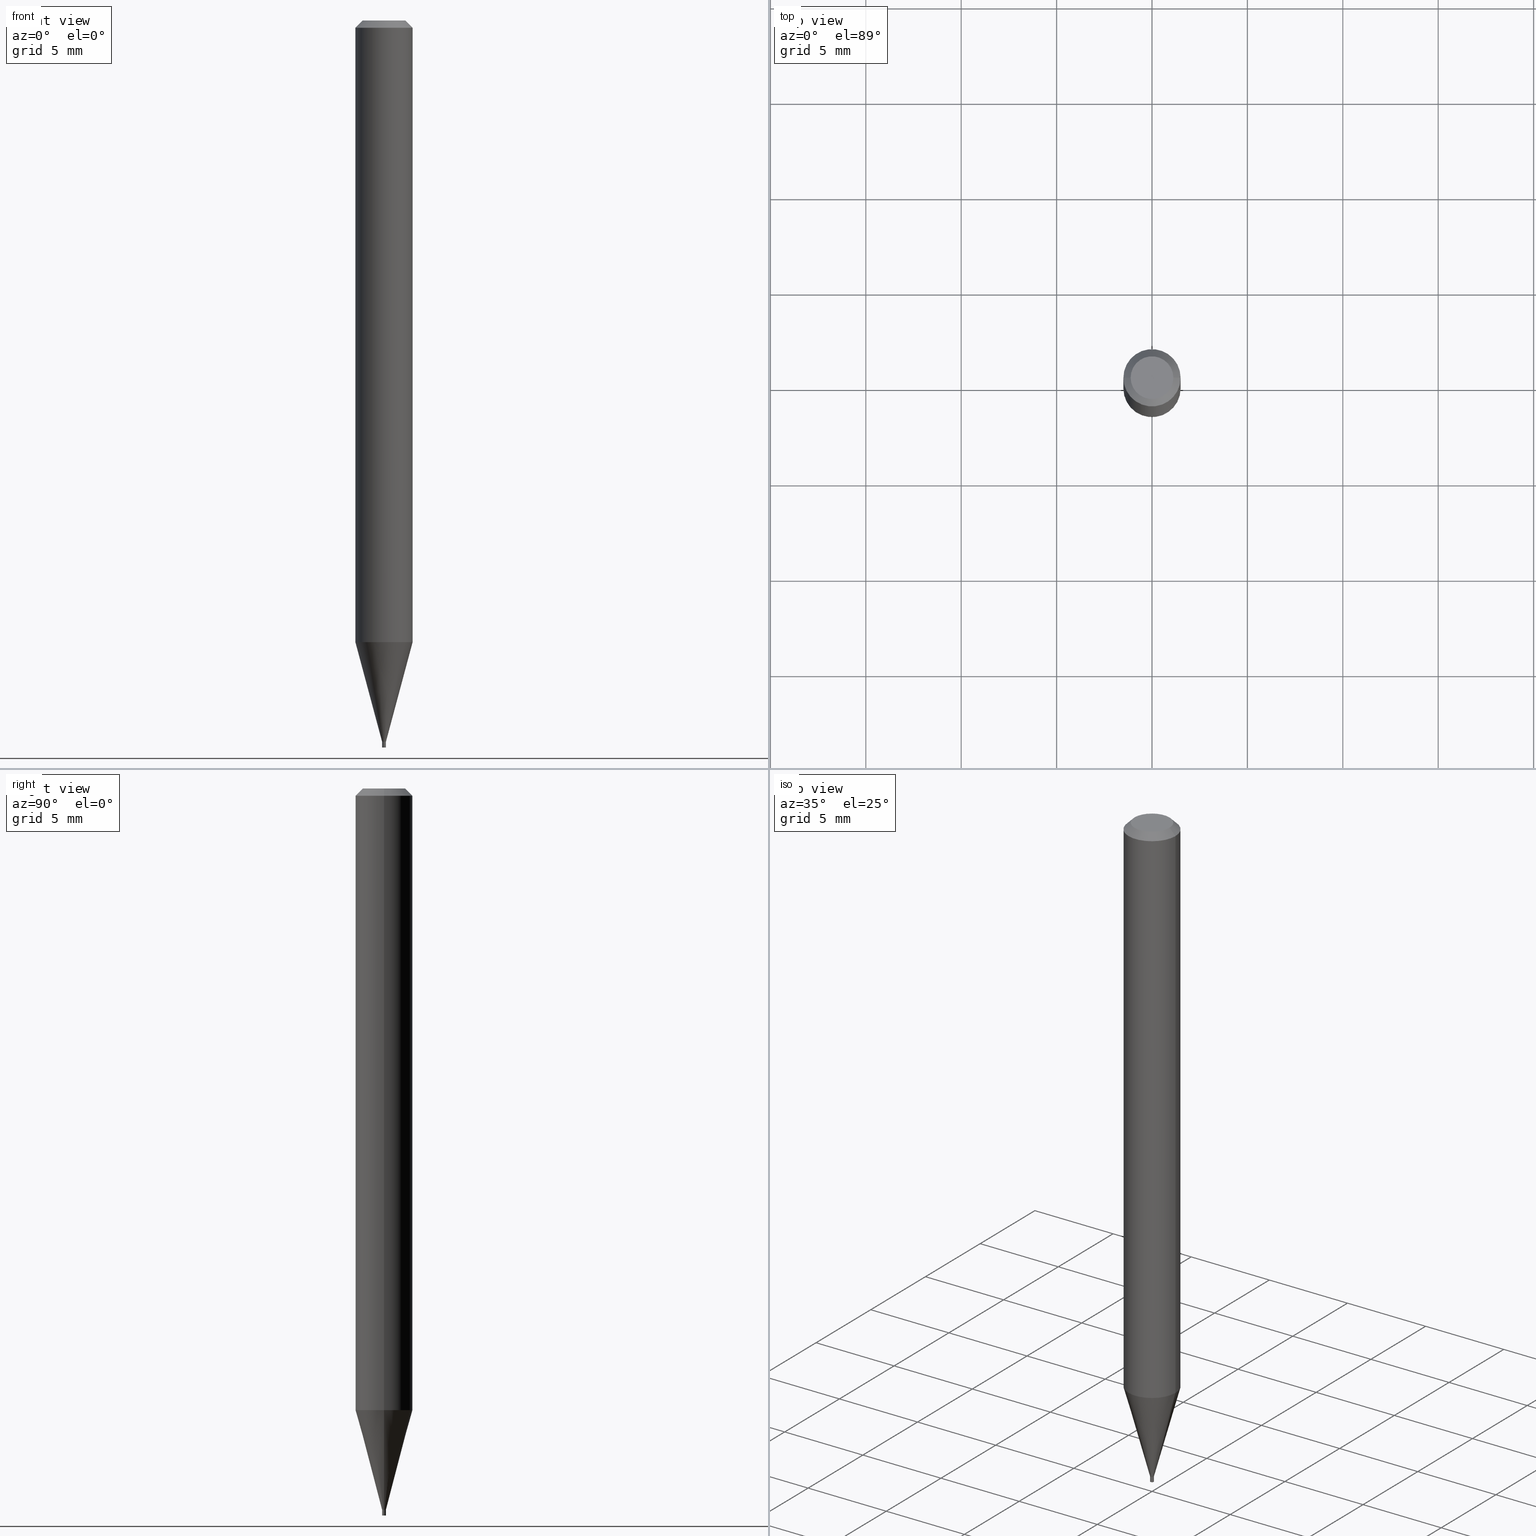
[diagram: canonical four-view strip — front | top / right | iso, engineering-drawing reading convention]
A machine part, canonical four-view strip (front | top / right | iso — engineering-drawing reading convention). The complete STEP part file that produces these views, byte-faithful:
ISO-10303-21;
HEADER;
FILE_DESCRIPTION (( 'STEP AP203' ),
    '1' );
FILE_NAME ('05113.STEP',
    '2024-03-14T17:57:27',
    ( '' ),
    ( '' ),
    'SwSTEP 2.0',
    'SolidWorks 2023',
    '' );
FILE_SCHEMA (( 'CONFIG_CONTROL_DESIGN' ));
ENDSEC;

DATA;
#1 = ADVANCED_FACE ( 'NONE', ( #111 ), #60, .T. ) ;
#2 = EDGE_LOOP ( 'NONE', ( #222, #417 ) ) ;
#3 = CARTESIAN_POINT ( 'NONE',  ( 3.639346677364720273E-29, -5.196022528466369115E-15, -1.488199999999999967 ) ) ;
#4 = ORIENTED_EDGE ( 'NONE', *, *, #45, .T. ) ;
#5 = EDGE_CURVE ( 'NONE', #278, #407, #464, .T. ) ;
#6 = FACE_OUTER_BOUND ( 'NONE', #448, .T. ) ;
#7 = ORIENTED_EDGE ( 'NONE', *, *, #156, .T. ) ;
#8 = SECURITY_CLASSIFICATION ( '', '', #376 ) ;
#9 = DIRECTION ( 'NONE',  ( 1.000000000000000000, -6.982962677686373207E-15, 0.000000000000000000 ) ) ;
#10 = ADVANCED_FACE ( 'NONE', ( #461 ), #422, .F. ) ;
#11 = COORDINATED_UNIVERSAL_TIME_OFFSET ( 5, 0, .BEHIND. ) ;
#12 = CARTESIAN_POINT ( 'NONE',  ( 0.003950000000000000386, -2.758270257686075787E-17, 1.926089826439394878E-31 ) ) ;
#13 = CIRCLE ( 'NONE', #238, 0.003949999999999924058 ) ;
#14 = DATE_AND_TIME ( #162, #368 ) ;
#15 = LINE ( 'NONE', #12, #332 ) ;
#16 = ORIENTED_EDGE ( 'NONE', *, *, #45, .F. ) ;
#17 = EDGE_CURVE ( 'NONE', #82, #402, #28, .T. ) ;
#18 = DATE_AND_TIME ( #264, #98 ) ;
#19 = DIRECTION ( 'NONE',  ( -2.445468806185136597E-29, 3.491481338843145583E-15, 1.000000000000000000 ) ) ;
#20 = EDGE_LOOP ( 'NONE', ( #415, #358 ) ) ;
#21 = AXIS2_PLACEMENT_3D ( 'NONE', #232, #270, #335 ) ;
#22 = AXIS2_PLACEMENT_3D ( 'NONE', #120, #183, #9 ) ;
#23 = ADVANCED_FACE ( 'NONE', ( #320 ), #149, .F. ) ;
#24 = ORIENTED_EDGE ( 'NONE', *, *, #109, .F. ) ;
#25 = VERTEX_POINT ( 'NONE', #265 ) ;
#26 = CIRCLE ( 'NONE', #22, 0.003450000000000000809 ) ;
#27 = EDGE_CURVE ( 'NONE', #465, #293, #230, .T. ) ;
#28 = LINE ( 'NONE', #285, #254 ) ;
#29 = CC_DESIGN_PERSON_AND_ORGANIZATION_ASSIGNMENT ( #129, #140, ( #8 ) ) ;
#30 = DIRECTION ( 'NONE',  ( -1.000000000000000000, 6.982962677686266711E-15, 0.000000000000000000 ) ) ;
#31 = EDGE_LOOP ( 'NONE', ( #182, #4, #237, #431 ) ) ;
#32 = CIRCLE ( 'NONE', #305, 0.003950000000000000386 ) ;
#33 = LOCAL_TIME ( 13, 57, 27.00000000000000000, #274 ) ;
#34 = CARTESIAN_POINT ( 'NONE',  ( 0.000000000000000000, 0.000000000000000000, 0.000000000000000000 ) ) ;
#35 = ORIENTED_EDGE ( 'NONE', *, *, #199, .F. ) ;
#36 = ORIENTED_EDGE ( 'NONE', *, *, #412, .F. ) ;
#37 = FACE_OUTER_BOUND ( 'NONE', #409, .T. ) ;
#38 = CARTESIAN_POINT ( 'NONE',  ( -0.003950000000000000386, -5.188555830303019624E-15, -1.488199999999999967 ) ) ;
#39 = CIRCLE ( 'NONE', #310, 0.05904999999999999832 ) ;
#40 = ADVANCED_FACE ( 'NONE', ( #447 ), #52, .F. ) ;
#41 = AXIS2_PLACEMENT_3D ( 'NONE', #444, #382, #337 ) ;
#42 = CARTESIAN_POINT ( 'NONE',  ( 3.668203209277704895E-29, -5.237222008264718177E-15, -1.500000000000000222 ) ) ;
#43 = APPROVAL_ROLE ( '' ) ;
#44 = DATE_AND_TIME ( #137, #33 ) ;
#45 = EDGE_CURVE ( 'NONE', #46, #118, #406, .T. ) ;
#46 = VERTEX_POINT ( 'NONE', #194 ) ;
#47 = AXIS2_PLACEMENT_3D ( 'NONE', #169, #315, #459 ) ;
#48 = ORGANIZATION ( 'UNSPECIFIED', 'UNSPECIFIED', '' ) ;
#49 = CARTESIAN_POINT ( 'NONE',  ( -0.003450000000000000809, -5.168859576908534791E-15, -1.488199999999999967 ) ) ;
#50 = DIRECTION ( 'NONE',  ( -2.445468806185136597E-29, 3.491481338843145583E-15, 1.000000000000000000 ) ) ;
#51 = DATE_AND_TIME ( #269, #272 ) ;
#52 = PLANE ( 'NONE',  #21 ) ;
#53 = EDGE_CURVE ( 'NONE', #25, #360, #15, .T. ) ;
#54 = APPROVAL_DATE_TIME ( #405, #174 ) ;
#55 = FACE_OUTER_BOUND ( 'NONE', #430, .T. ) ;
#56 = ORIENTED_EDGE ( 'NONE', *, *, #283, .F. ) ;
#57 = DATE_TIME_ROLE ( 'classification_date' ) ;
#58 = CYLINDRICAL_SURFACE ( 'NONE', #71, 0.05904999999999999832 ) ;
#59 = ADVANCED_FACE ( 'NONE', ( #303 ), #440, .F. ) ;
#60 = CONICAL_SURFACE ( 'NONE', #204, 0.05904999999999999832, 0.7853981633974284060 ) ;
#61 = CIRCLE ( 'NONE', #443, 0.003950000000000000386 ) ;
#62 = ORIENTED_EDGE ( 'NONE', *, *, #348, .T. ) ;
#63 = DIRECTION ( 'NONE',  ( -1.000000000000000000, 6.982962677686265922E-15, -4.876176775795935793E-29 ) ) ;
#64 = DIRECTION ( 'NONE',  ( 1.000000000000000000, -6.982962677686267499E-15, 4.876176775795935793E-29 ) ) ;
#65 = DIMENSIONAL_EXPONENTS ( 1.000000000000000000, 0.000000000000000000, 0.000000000000000000, 0.000000000000000000, 0.000000000000000000, 0.000000000000000000, 0.000000000000000000 ) ;
#66 = VERTEX_POINT ( 'NONE', #247 ) ;
#67 = PRODUCT_RELATED_PRODUCT_CATEGORY ( 'detail', '', ( #423 ) ) ;
#68 = EDGE_CURVE ( 'NONE', #46, #195, #226, .T. ) ;
#69 = CARTESIAN_POINT ( 'NONE',  ( 3.639346677364720273E-29, -5.196022528466369115E-15, -1.488199999999999967 ) ) ;
#70 = DIRECTION ( 'NONE',  ( 1.000000000000000000, -6.982962677686266711E-15, 0.000000000000000000 ) ) ;
#71 = AXIS2_PLACEMENT_3D ( 'NONE', #201, #142, #112 ) ;
#72 = CONICAL_SURFACE ( 'NONE', #413, 0.003949999999999924058, 0.2617993877991500740 ) ;
#73 = DIRECTION ( 'NONE',  ( -2.445468806185136597E-29, 3.491481338843145583E-15, 1.000000000000000000 ) ) ;
#74 = CARTESIAN_POINT ( 'NONE',  ( -0.05904999999999999832, -4.058472788161738088E-15, -1.282564000502955048 ) ) ;
#75 = DIRECTION ( 'NONE',  ( -2.445468806185136597E-29, 3.491481338843145583E-15, 1.000000000000000000 ) ) ;
#76 = EDGE_LOOP ( 'NONE', ( #399, #396 ) ) ;
#77 = CARTESIAN_POINT ( 'NONE',  ( 3.638123942961628033E-29, -5.194276787796947611E-15, -1.487700000000000022 ) ) ;
#78 = ORIENTED_EDGE ( 'NONE', *, *, #156, .F. ) ;
#79 = ADVANCED_BREP_SHAPE_REPRESENTATION ( '05113', ( #438, #450, #41 ), #255 ) ;
#80 = CARTESIAN_POINT ( 'NONE',  ( 3.639346677364720273E-29, -5.196022528466369115E-15, -1.488199999999999967 ) ) ;
#81 = AXIS2_PLACEMENT_3D ( 'NONE', #263, #404, #363 ) ;
#82 = VERTEX_POINT ( 'NONE', #74 ) ;
#83 = AXIS2_PLACEMENT_3D ( 'NONE', #186, #429, #466 ) ;
#84 = CARTESIAN_POINT ( 'NONE',  ( 0.003949999999999924058, -2.758270257686021861E-17, 1.926089826439357437E-31 ) ) ;
#85 = ORIENTED_EDGE ( 'NONE', *, *, #318, .T. ) ;
#86 = DIRECTION ( 'NONE',  ( -2.445468806185136597E-29, 3.491481338843145583E-15, 1.000000000000000000 ) ) ;
#87 = ORIENTED_EDGE ( 'NONE', *, *, #220, .T. ) ;
#88 = ADVANCED_FACE ( 'NONE', ( #314 ), #164, .T. ) ;
#89 = PRODUCT_DEFINITION_FORMATION_WITH_SPECIFIED_SOURCE ( 'ANY', '', #423, .NOT_KNOWN. ) ;
#90 = CARTESIAN_POINT ( 'NONE',  ( 0.05904999999999999832, -4.123439461173740327E-16, 2.879382386107500220E-30 ) ) ;
#91 = ORIENTED_EDGE ( 'NONE', *, *, #356, .F. ) ;
#92 = CC_DESIGN_PERSON_AND_ORGANIZATION_ASSIGNMENT ( #302, #96, ( #89 ) ) ;
#93 = PERSON_AND_ORGANIZATION ( #110, #48 ) ;
#94 = CARTESIAN_POINT ( 'NONE',  ( 0.003450000000000000809, -5.220113749704386653E-15, -1.488199999999999967 ) ) ;
#95 = ORIENTED_EDGE ( 'NONE', *, *, #181, .T. ) ;
#96 = PERSON_AND_ORGANIZATION_ROLE ( 'creator' ) ;
#97 = VECTOR ( 'NONE', #190, 39.37007874015748143 ) ;
#98 = LOCAL_TIME ( 13, 57, 27.00000000000000000, #11 ) ;
#99 = CARTESIAN_POINT ( 'NONE',  ( 3.668203209277705088E-31, -5.237222008264718399E-17, -0.01499999999999999944 ) ) ;
#100 = DIRECTION ( 'NONE',  ( -0.7071067811865333619, 2.468850131082109149E-15, -0.7071067811865614505 ) ) ;
#101 = DIRECTION ( 'NONE',  ( -2.445468806185136877E-29, 3.491481338843145188E-15, 1.000000000000000000 ) ) ;
#102 = PERSON_AND_ORGANIZATION_ROLE ( 'design_supplier' ) ;
#103 = EDGE_CURVE ( 'NONE', #66, #293, #131, .T. ) ;
#104 = ORIENTED_EDGE ( 'NONE', *, *, #168, .F. ) ;
#105 = FACE_OUTER_BOUND ( 'NONE', #392, .T. ) ;
#106 = CLOSED_SHELL ( 'NONE', ( #311, #88, #1, #236, #141, #381, #321, #345, #23, #10, #325, #241 ) ) ;
#107 = CC_DESIGN_APPROVAL ( #354, ( #89 ) ) ;
#108 = DIRECTION ( 'NONE',  ( 1.000000000000000000, -6.982962677686265922E-15, 4.957392940945096353E-29 ) ) ;
#109 = EDGE_CURVE ( 'NONE', #282, #66, #432, .T. ) ;
#110 = PERSON ( 'UNSPECIFIED', 'UNSPECIFIED', 'UNSPECIFIED', ('UNSPECIFIED'), ('UNSPECIFIED'), ('UNSPECIFIED') ) ;
#111 = FACE_OUTER_BOUND ( 'NONE', #31, .T. ) ;
#112 = DIRECTION ( 'NONE',  ( 1.000000000000000000, -6.982962677686266711E-15, 4.876176775795936353E-29 ) ) ;
#113 = DIRECTION ( 'NONE',  ( 2.445468806185136597E-29, -3.491481338843145583E-15, -1.000000000000000000 ) ) ;
#114 = CARTESIAN_POINT ( 'NONE',  ( 0.000000000000000000, 0.000000000000000000, 0.000000000000000000 ) ) ;
#115 = VECTOR ( 'NONE', #256, 39.37007874015747433 ) ;
#116 = DIRECTION ( 'NONE',  ( -2.445468806185136597E-29, 3.491481338843145583E-15, 1.000000000000000000 ) ) ;
#117 = CARTESIAN_POINT ( 'NONE',  ( 0.003950000000000000386, -5.223605231043229660E-15, -1.488199999999999967 ) ) ;
#118 = VERTEX_POINT ( 'NONE', #249 ) ;
#119 = ADVANCED_FACE ( 'NONE', ( #387 ), #212, .T. ) ;
#120 = CARTESIAN_POINT ( 'NONE',  ( 3.639346677364720273E-29, -5.196022528466369115E-15, -1.488199999999999967 ) ) ;
#121 = AXIS2_PLACEMENT_3D ( 'NONE', #224, #127, #63 ) ;
#122 = EDGE_LOOP ( 'NONE', ( #143, #458, #62, #95 ) ) ;
#123 = EDGE_CURVE ( 'NONE', #278, #300, #170, .T. ) ;
#124 = CARTESIAN_POINT ( 'NONE',  ( 3.639346677364720273E-29, -5.196022528466369115E-15, -1.488199999999999967 ) ) ;
#125 = ORIENTED_EDGE ( 'NONE', *, *, #348, .F. ) ;
#126 = LINE ( 'NONE', #90, #393 ) ;
#127 = DIRECTION ( 'NONE',  ( 2.438088387897960049E-29, -3.491481338843145188E-15, -1.000000000000000000 ) ) ;
#128 = UNCERTAINTY_MEASURE_WITH_UNIT (LENGTH_MEASURE( 1.000000000000000082E-05 ), #218, 'distance_accuracy_value', 'NONE');
#129 = PERSON_AND_ORGANIZATION ( #110, #48 ) ;
#130 = DIRECTION ( 'NONE',  ( 2.438088387897960049E-29, -3.491481338843145188E-15, -1.000000000000000000 ) ) ;
#131 = CIRCLE ( 'NONE', #317, 0.003949999999999924058 ) ;
#132 = APPROVAL_ROLE ( '' ) ;
#133 = ORIENTED_EDGE ( 'NONE', *, *, #463, .F. ) ;
#134 = DATE_TIME_ROLE ( 'creation_date' ) ;
#135 = ORIENTED_EDGE ( 'NONE', *, *, #109, .T. ) ;
#136 = DIRECTION ( 'NONE',  ( 1.000000000000000000, -6.982962677686381095E-15, 0.000000000000000000 ) ) ;
#137 = CALENDAR_DATE ( 2024, 14, 3 ) ;
#138 = VECTOR ( 'NONE', #273, 39.37007874015747433 ) ;
#139 = CC_DESIGN_APPROVAL ( #174, ( #260 ) ) ;
#140 = PERSON_AND_ORGANIZATION_ROLE ( 'classification_officer' ) ;
#141 = ADVANCED_FACE ( 'NONE', ( #316 ), #442, .T. ) ;
#142 = DIRECTION ( 'NONE',  ( -2.445468806185136597E-29, 3.491481338843145583E-15, 1.000000000000000000 ) ) ;
#143 = ORIENTED_EDGE ( 'NONE', *, *, #318, .F. ) ;
#144 = EDGE_CURVE ( 'NONE', #195, #402, #268, .T. ) ;
#145 = CARTESIAN_POINT ( 'NONE',  ( 3.668203209277705088E-31, -5.237222008264718399E-17, -0.01499999999999999944 ) ) ;
#146 = CARTESIAN_POINT ( 'NONE',  ( 3.638123942961628033E-29, -5.194276787796947611E-15, -1.487700000000000022 ) ) ;
#147 = DIRECTION ( 'NONE',  ( -2.445468806185136597E-29, 3.491481338843145583E-15, 1.000000000000000000 ) ) ;
#148 = CIRCLE ( 'NONE', #435, 0.003949999999999924058 ) ;
#149 = PLANE ( 'NONE',  #286 ) ;
#150 = CIRCLE ( 'NONE', #287, 0.05904999999999999832 ) ;
#151 =( LENGTH_UNIT ( ) NAMED_UNIT ( * ) SI_UNIT ( $, .METRE. ) );
#152 = CC_DESIGN_PERSON_AND_ORGANIZATION_ASSIGNMENT ( #446, #408, ( #423 ) ) ;
#153 = CARTESIAN_POINT ( 'NONE',  ( 3.136470255165994153E-29, -4.478048273628078370E-15, -1.282564000502955048 ) ) ;
#154 = DIRECTION ( 'NONE',  ( 1.000000000000000000, -6.982962677686381095E-15, 0.000000000000000000 ) ) ;
#155 = CYLINDRICAL_SURFACE ( 'NONE', #319, 0.003950000000000000386 ) ;
#156 = EDGE_CURVE ( 'NONE', #253, #322, #379, .T. ) ;
#157 = DIRECTION ( 'NONE',  ( -2.445468806185136597E-29, 3.491481338843145583E-15, 1.000000000000000000 ) ) ;
#158 = ORIENTED_EDGE ( 'NONE', *, *, #17, .F. ) ;
#159 = CIRCLE ( 'NONE', #279, 0.04404999999999999888 ) ;
#160 = CONICAL_SURFACE ( 'NONE', #228, 0.05904999999999999832, 0.7853981633974284060 ) ;
#161 = CARTESIAN_POINT ( 'NONE',  ( -0.003949999999999924058, -5.167956090403845093E-15, -1.488199999999999967 ) ) ;
#162 = CALENDAR_DATE ( 2024, 14, 3 ) ;
#163 = DIRECTION ( 'NONE',  ( -2.445468806185136877E-29, 3.491481338843145188E-15, 1.000000000000000000 ) ) ;
#164 = CONICAL_SURFACE ( 'NONE', #47, 0.003450000000000000809, 0.7853981633974723708 ) ;
#165 = MECHANICAL_CONTEXT ( 'NONE', #424, 'mechanical' ) ;
#166 = SHAPE_DEFINITION_REPRESENTATION ( #350, #79 ) ;
#167 = PERSON_AND_ORGANIZATION ( #110, #48 ) ;
#168 = EDGE_CURVE ( 'NONE', #360, #322, #32, .T. ) ;
#169 = CARTESIAN_POINT ( 'NONE',  ( 3.639346677364720273E-29, -5.196022528466369115E-15, -1.488199999999999967 ) ) ;
#170 = LINE ( 'NONE', #418, #138 ) ;
#171 = ORIENTED_EDGE ( 'NONE', *, *, #229, .F. ) ;
#172 = DIRECTION ( 'NONE',  ( 1.000000000000000000, -6.982962677686381095E-15, 0.000000000000000000 ) ) ;
#173 = DIRECTION ( 'NONE',  ( -2.445468806185136877E-29, 3.491481338843145188E-15, 1.000000000000000000 ) ) ;
#174 = APPROVAL ( #370, 'UNSPECIFIED' ) ;
#175 = CARTESIAN_POINT ( 'NONE',  ( 3.639346677364720273E-29, -5.196022528466369115E-15, -1.488199999999999967 ) ) ;
#176 = ORIENTED_EDGE ( 'NONE', *, *, #220, .F. ) ;
#177 = VECTOR ( 'NONE', #100, 39.37007874015748854 ) ;
#178 = CONICAL_SURFACE ( 'NONE', #377, 0.003450000000000000809, 0.7853981633974723708 ) ;
#179 = DIRECTION ( 'NONE',  ( 1.000000000000000000, -6.982962677686373207E-15, 0.000000000000000000 ) ) ;
#180 = DIRECTION ( 'NONE',  ( 1.000000000000000000, -6.982962677686265922E-15, 4.876176775795935232E-29 ) ) ;
#181 = EDGE_CURVE ( 'NONE', #293, #66, #13, .T. ) ;
#182 = ORIENTED_EDGE ( 'NONE', *, *, #68, .F. ) ;
#183 = DIRECTION ( 'NONE',  ( -2.445468806185136597E-29, 3.491481338843145583E-15, 1.000000000000000000 ) ) ;
#184 = ORIENTED_EDGE ( 'NONE', *, *, #181, .F. ) ;
#185 = ORIENTED_EDGE ( 'NONE', *, *, #5, .T. ) ;
#186 = CARTESIAN_POINT ( 'NONE',  ( 3.668203209277704895E-29, -5.237222008264718177E-15, -1.500000000000000222 ) ) ;
#187 = CIRCLE ( 'NONE', #451, 0.003450000000000000809 ) ;
#188 = DIRECTION ( 'NONE',  ( -2.445468806185136597E-29, 3.491481338843145583E-15, 1.000000000000000000 ) ) ;
#189 =( NAMED_UNIT ( * ) PLANE_ANGLE_UNIT ( ) SI_UNIT ( $, .RADIAN. ) );
#190 = DIRECTION ( 'NONE',  ( 0.7071067811865645591, -2.468850131082435343E-15, 0.7071067811865304753 ) ) ;
#191 = CARTESIAN_POINT ( 'NONE',  ( -0.04404999999999999888, 3.337856159934044986E-16, 6.005310506687738188E-16 ) ) ;
#192 = ORIENTED_EDGE ( 'NONE', *, *, #144, .T. ) ;
#193 = PERSON_AND_ORGANIZATION ( #110, #48 ) ;
#194 = CARTESIAN_POINT ( 'NONE',  ( 0.04404999999999999888, -3.798447818264450218E-16, 6.005310506687784534E-16 ) ) ;
#195 = VERTEX_POINT ( 'NONE', #191 ) ;
#196 = AXIS2_PLACEMENT_3D ( 'NONE', #420, #50, #136 ) ;
#197 = APPROVAL_ROLE ( '' ) ;
#198 = ORIENTED_EDGE ( 'NONE', *, *, #403, .T. ) ;
#199 = EDGE_CURVE ( 'NONE', #195, #46, #159, .T. ) ;
#200 = CARTESIAN_POINT ( 'NONE',  ( -0.003950000000000000386, 2.806643806252396008E-17, -1.942979360650688056E-31 ) ) ;
#201 = CARTESIAN_POINT ( 'NONE',  ( 0.000000000000000000, 0.000000000000000000, 0.000000000000000000 ) ) ;
#202 = EDGE_LOOP ( 'NONE', ( #78, #445, #362, #171 ) ) ;
#203 = PERSON_AND_ORGANIZATION ( #110, #48 ) ;
#204 = AXIS2_PLACEMENT_3D ( 'NONE', #145, #113, #462 ) ;
#205 = CIRCLE ( 'NONE', #83, 0.003950000000000000386 ) ;
#206 = CARTESIAN_POINT ( 'NONE',  ( 0.000000000000000000, 0.000000000000000000, 0.000000000000000000 ) ) ;
#207 = ORIENTED_EDGE ( 'NONE', *, *, #248, .F. ) ;
#208 = DIRECTION ( 'NONE',  ( -2.445468806185136597E-29, 3.491481338843145583E-15, 1.000000000000000000 ) ) ;
#209 = CLOSED_SHELL ( 'NONE', ( #394, #40, #119, #59 ) ) ;
#210 = DIRECTION ( 'NONE',  ( -2.438088387897960049E-29, 3.491481338843145188E-15, 1.000000000000000000 ) ) ;
#211 = APPROVAL_PERSON_ORGANIZATION ( #167, #174, #43 ) ;
#212 = CYLINDRICAL_SURFACE ( 'NONE', #375, 0.003950000000000000386 ) ;
#213 = DIRECTION ( 'NONE',  ( -2.445468806185136597E-29, 3.491481338843145583E-15, 1.000000000000000000 ) ) ;
#214 = EDGE_CURVE ( 'NONE', #82, #300, #411, .T. ) ;
#215 = DIRECTION ( 'NONE',  ( -2.445468806185136597E-29, 3.491481338843145583E-15, 1.000000000000000000 ) ) ;
#216 = EDGE_LOOP ( 'NONE', ( #233, #135, #184, #416 ) ) ;
#217 = CC_DESIGN_DATE_AND_TIME_ASSIGNMENT ( #51, #57, ( #8 ) ) ;
#218 =( CONVERSION_BASED_UNIT ( 'INCH', #252 ) LENGTH_UNIT ( ) NAMED_UNIT ( #65 ) );
#219 = VECTOR ( 'NONE', #284, 39.37007874015748143 ) ;
#220 = EDGE_CURVE ( 'NONE', #300, #118, #126, .T. ) ;
#221 = DIRECTION ( 'NONE',  ( -2.445468806185136597E-29, 3.491481338843145583E-15, 1.000000000000000000 ) ) ;
#222 = ORIENTED_EDGE ( 'NONE', *, *, #449, .F. ) ;
#223 = LINE ( 'NONE', #161, #115 ) ;
#224 = CARTESIAN_POINT ( 'NONE',  ( 2.758270257689714716E-17, 0.003949999999994804889, -1.488199999999999967 ) ) ;
#225 = LINE ( 'NONE', #227, #239 ) ;
#226 = CIRCLE ( 'NONE', #434, 0.04404999999999999888 ) ;
#227 = CARTESIAN_POINT ( 'NONE',  ( -0.003949999999999924058, 2.806643806252341774E-17, -1.942979360650650178E-31 ) ) ;
#228 = AXIS2_PLACEMENT_3D ( 'NONE', #397, #299, #30 ) ;
#229 = EDGE_CURVE ( 'NONE', #322, #360, #271, .T. ) ;
#230 = LINE ( 'NONE', #94, #97 ) ;
#231 = APPROVAL_DATE_TIME ( #18, #304 ) ;
#232 = CARTESIAN_POINT ( 'NONE',  ( 3.576687321579069994E-29, -5.368277968210015545E-15, -1.500000000000000222 ) ) ;
#233 = ORIENTED_EDGE ( 'NONE', *, *, #248, .T. ) ;
#234 = PERSON_AND_ORGANIZATION ( #110, #48 ) ;
#235 = DIRECTION ( 'NONE',  ( 0.7071067811865333619, -7.319954787623207136E-15, -0.7071067811865614505 ) ) ;
#236 = ADVANCED_FACE ( 'NONE', ( #55 ), #58, .T. ) ;
#237 = ORIENTED_EDGE ( 'NONE', *, *, #463, .T. ) ;
#238 = AXIS2_PLACEMENT_3D ( 'NONE', #77, #213, #359 ) ;
#239 = VECTOR ( 'NONE', #259, 39.37007874015748143 ) ;
#240 = CARTESIAN_POINT ( 'NONE',  ( 3.639346677364720273E-29, -5.196022528466369115E-15, -1.488199999999999967 ) ) ;
#241 = ADVANCED_FACE ( 'NONE', ( #347 ), #277, .F. ) ;
#242 = COORDINATED_UNIVERSAL_TIME_OFFSET ( 5, 0, .BEHIND. ) ;
#243 = CARTESIAN_POINT ( 'NONE',  ( 0.05904999999999999832, -4.890392219745453290E-15, -1.282564000502955048 ) ) ;
#244 = EDGE_LOOP ( 'NONE', ( #185, #353, #378, #383 ) ) ;
#245 = VECTOR ( 'NONE', #296, 39.37007874015748143 ) ;
#246 = EDGE_LOOP ( 'NONE', ( #36, #331, #266, #380 ) ) ;
#247 = CARTESIAN_POINT ( 'NONE',  ( -0.003949999999999924058, -5.166210349734423589E-15, -1.487700000000000022 ) ) ;
#248 = EDGE_CURVE ( 'NONE', #465, #282, #187, .T. ) ;
#249 = CARTESIAN_POINT ( 'NONE',  ( 0.05904999999999999832, -4.647161662000212105E-16, -0.01499999999999999944 ) ) ;
#250 = AXIS2_PLACEMENT_3D ( 'NONE', #153, #290, #374 ) ;
#251 = FACE_OUTER_BOUND ( 'NONE', #391, .T. ) ;
#252 = LENGTH_MEASURE_WITH_UNIT ( LENGTH_MEASURE( 0.02539999999999999897 ), #151 );
#253 = VERTEX_POINT ( 'NONE', #355 ) ;
#254 = VECTOR ( 'NONE', #173, 39.37007874015748143 ) ;
#255 =( GEOMETRIC_REPRESENTATION_CONTEXT ( 3 ) GLOBAL_UNCERTAINTY_ASSIGNED_CONTEXT ( ( #128 ) ) GLOBAL_UNIT_ASSIGNED_CONTEXT ( ( #218, #189, #371 ) ) REPRESENTATION_CONTEXT ( 'NONE', 'WORKASPACE' ) );
#256 = DIRECTION ( 'NONE',  ( -0.2588190451025213501, 5.211531920934551042E-15, 0.9659258262890682012 ) ) ;
#257 = DIRECTION ( 'NONE',  ( 1.000000000000000000, -6.982962677686373207E-15, 0.000000000000000000 ) ) ;
#258 = DIRECTION ( 'NONE',  ( 1.000000000000000000, -6.982962677686266711E-15, 0.000000000000000000 ) ) ;
#259 = DIRECTION ( 'NONE',  ( -2.445468806185136877E-29, 3.491481338843145188E-15, 1.000000000000000000 ) ) ;
#260 = PRODUCT_DEFINITION ( 'UNKNOWN', '', #89, #301 ) ;
#261 = DIRECTION ( 'NONE',  ( -1.000000000000000000, 6.982962677686265922E-15, -4.876176775795935793E-29 ) ) ;
#262 = ORIENTED_EDGE ( 'NONE', *, *, #27, .T. ) ;
#263 = CARTESIAN_POINT ( 'NONE',  ( 3.136470255165994153E-29, -4.478048273628078370E-15, -1.282564000502955048 ) ) ;
#264 = CALENDAR_DATE ( 2024, 14, 3 ) ;
#265 = CARTESIAN_POINT ( 'NONE',  ( 0.003950000000000000386, -5.264804710841579511E-15, -1.500000000000000222 ) ) ;
#266 = ORIENTED_EDGE ( 'NONE', *, *, #123, .T. ) ;
#267 = APPROVAL_STATUS ( 'not_yet_approved' ) ;
#268 = LINE ( 'NONE', #410, #177 ) ;
#269 = CALENDAR_DATE ( 2024, 14, 3 ) ;
#270 = DIRECTION ( 'NONE',  ( -2.438088387897960049E-29, 3.491481338843145188E-15, 1.000000000000000000 ) ) ;
#271 = CIRCLE ( 'NONE', #460, 0.003950000000000000386 ) ;
#272 = LOCAL_TIME ( 13, 57, 27.00000000000000000, #242 ) ;
#273 = DIRECTION ( 'NONE',  ( 0.2588190451025213501, 1.565188264969621968E-15, 0.9659258262890682012 ) ) ;
#274 = COORDINATED_UNIVERSAL_TIME_OFFSET ( 5, 0, .BEHIND. ) ;
#275 = DIRECTION ( 'NONE',  ( 1.000000000000000000, -6.982962677686246200E-15, 0.000000000000000000 ) ) ;
#276 = EDGE_CURVE ( 'NONE', #300, #82, #367, .T. ) ;
#277 = CYLINDRICAL_SURFACE ( 'NONE', #453, 0.003949999999999924058 ) ;
#278 = VERTEX_POINT ( 'NONE', #456 ) ;
#279 = AXIS2_PLACEMENT_3D ( 'NONE', #309, #188, #336 ) ;
#280 = DIRECTION ( 'NONE',  ( -2.445468806185136597E-29, 3.491481338843145583E-15, 1.000000000000000000 ) ) ;
#281 = ORIENTED_EDGE ( 'NONE', *, *, #53, .F. ) ;
#282 = VERTEX_POINT ( 'NONE', #49 ) ;
#283 = EDGE_CURVE ( 'NONE', #402, #118, #39, .T. ) ;
#284 = DIRECTION ( 'NONE',  ( -0.7071067811865645591, 7.493145998870415691E-15, 0.7071067811865304753 ) ) ;
#285 = CARTESIAN_POINT ( 'NONE',  ( -0.05904999999999999832, 4.195754854663391478E-16, -2.904631170795521892E-30 ) ) ;
#286 = AXIS2_PLACEMENT_3D ( 'NONE', #307, #130, #261 ) ;
#287 = AXIS2_PLACEMENT_3D ( 'NONE', #364, #330, #258 ) ;
#288 = DIRECTION ( 'NONE',  ( -2.445468806185136597E-29, 3.491481338843145583E-15, 1.000000000000000000 ) ) ;
#289 = DIRECTION ( 'NONE',  ( 1.000000000000000000, -6.982962677686246200E-15, 0.000000000000000000 ) ) ;
#290 = DIRECTION ( 'NONE',  ( -2.445468806185136597E-29, 3.491481338843145583E-15, 1.000000000000000000 ) ) ;
#291 = DIRECTION ( 'NONE',  ( -2.445468806185136597E-29, 3.491481338843145583E-15, 1.000000000000000000 ) ) ;
#292 = ORIENTED_EDGE ( 'NONE', *, *, #103, .T. ) ;
#293 = VERTEX_POINT ( 'NONE', #312 ) ;
#294 = FACE_OUTER_BOUND ( 'NONE', #338, .T. ) ;
#295 = ORIENTED_EDGE ( 'NONE', *, *, #283, .T. ) ;
#296 = DIRECTION ( 'NONE',  ( -2.445468806185136877E-29, 3.491481338843145188E-15, 1.000000000000000000 ) ) ;
#297 = AXIS2_PLACEMENT_3D ( 'NONE', #69, #210, #352 ) ;
#298 = LOCAL_TIME ( 13, 57, 27.00000000000000000, #342 ) ;
#299 = DIRECTION ( 'NONE',  ( 2.445468806185136597E-29, -3.491481338843145583E-15, -1.000000000000000000 ) ) ;
#300 = VERTEX_POINT ( 'NONE', #243 ) ;
#301 = DESIGN_CONTEXT ( 'detailed design', #452, 'design' ) ;
#302 = PERSON_AND_ORGANIZATION ( #110, #48 ) ;
#303 = FACE_OUTER_BOUND ( 'NONE', #76, .T. ) ;
#304 = APPROVAL ( #401, 'UNSPECIFIED' ) ;
#305 = AXIS2_PLACEMENT_3D ( 'NONE', #175, #73, #289 ) ;
#306 = APPLICATION_PROTOCOL_DEFINITION ( 'international standard', 'config_control_design', 1994, #452 ) ;
#307 = CARTESIAN_POINT ( 'NONE',  ( 3.075995059520799729E-16, 0.04404999999999999888, 1.464657723583474653E-16 ) ) ;
#308 = AXIS2_PLACEMENT_3D ( 'NONE', #114, #288, #180 ) ;
#309 = CARTESIAN_POINT ( 'NONE',  ( -1.468579951556077338E-44, 2.096742956805899036E-30, 6.005310506687760868E-16 ) ) ;
#310 = AXIS2_PLACEMENT_3D ( 'NONE', #99, #147, #70 ) ;
#311 = ADVANCED_FACE ( 'NONE', ( #105 ), #365, .F. ) ;
#312 = CARTESIAN_POINT ( 'NONE',  ( 0.003949999999999924058, -5.221859490373808156E-15, -1.487700000000000022 ) ) ;
#313 = ORIENTED_EDGE ( 'NONE', *, *, #214, .T. ) ;
#314 = FACE_OUTER_BOUND ( 'NONE', #216, .T. ) ;
#315 = DIRECTION ( 'NONE',  ( -2.445468806185136597E-29, 3.491481338843145583E-15, 1.000000000000000000 ) ) ;
#316 = FACE_OUTER_BOUND ( 'NONE', #244, .T. ) ;
#317 = AXIS2_PLACEMENT_3D ( 'NONE', #146, #280, #419 ) ;
#318 = EDGE_CURVE ( 'NONE', #407, #66, #225, .T. ) ;
#319 = AXIS2_PLACEMENT_3D ( 'NONE', #34, #86, #433 ) ;
#320 = FACE_OUTER_BOUND ( 'NONE', #20, .T. ) ;
#321 = ADVANCED_FACE ( 'NONE', ( #6 ), #357, .T. ) ;
#322 = VERTEX_POINT ( 'NONE', #38 ) ;
#323 = APPROVAL_PERSON_ORGANIZATION ( #193, #354, #132 ) ;
#324 = LINE ( 'NONE', #84, #340 ) ;
#325 = ADVANCED_FACE ( 'NONE', ( #294 ), #178, .T. ) ;
#326 = EDGE_CURVE ( 'NONE', #253, #25, #205, .T. ) ;
#327 = DIRECTION ( 'NONE',  ( -2.445468806185136597E-29, 3.491481338843145583E-15, 1.000000000000000000 ) ) ;
#328 = ORIENTED_EDGE ( 'NONE', *, *, #276, .T. ) ;
#329 = ORIENTED_EDGE ( 'NONE', *, *, #17, .T. ) ;
#330 = DIRECTION ( 'NONE',  ( -2.445468806185136597E-29, 3.491481338843145583E-15, 1.000000000000000000 ) ) ;
#331 = ORIENTED_EDGE ( 'NONE', *, *, #356, .T. ) ;
#332 = VECTOR ( 'NONE', #163, 39.37007874015748143 ) ;
#333 = FACE_OUTER_BOUND ( 'NONE', #246, .T. ) ;
#334 = DIRECTION ( 'NONE',  ( 1.000000000000000000, -6.982962677686381095E-15, 0.000000000000000000 ) ) ;
#335 = DIRECTION ( 'NONE',  ( 1.000000000000000000, -6.982962677686265922E-15, 4.876176775795935793E-29 ) ) ;
#336 = DIRECTION ( 'NONE',  ( 1.000000000000000000, -6.982962677686265922E-15, 4.957392940945096353E-29 ) ) ;
#337 = DIRECTION ( 'NONE',  ( 1.000000000000000000, 0.000000000000000000, 0.000000000000000000 ) ) ;
#338 = EDGE_LOOP ( 'NONE', ( #24, #198, #262, #457 ) ) ;
#339 = APPROVAL_DATE_TIME ( #14, #354 ) ;
#340 = VECTOR ( 'NONE', #389, 39.37007874015748143 ) ;
#341 = DIRECTION ( 'NONE',  ( -2.445468806185136597E-29, 3.491481338843145583E-15, 1.000000000000000000 ) ) ;
#342 = COORDINATED_UNIVERSAL_TIME_OFFSET ( 5, 0, .BEHIND. ) ;
#343 = COORDINATED_UNIVERSAL_TIME_OFFSET ( 5, 0, .BEHIND. ) ;
#344 = EDGE_LOOP ( 'NONE', ( #207, #349 ) ) ;
#345 = ADVANCED_FACE ( 'NONE', ( #251 ), #160, .T. ) ;
#346 = CC_DESIGN_SECURITY_CLASSIFICATION ( #8, ( #89 ) ) ;
#347 = FACE_OUTER_BOUND ( 'NONE', #122, .T. ) ;
#348 = EDGE_CURVE ( 'NONE', #278, #293, #324, .T. ) ;
#349 = ORIENTED_EDGE ( 'NONE', *, *, #403, .F. ) ;
#350 = PRODUCT_DEFINITION_SHAPE ( 'NONE', 'NONE',  #260 ) ;
#351 = AXIS2_PLACEMENT_3D ( 'NONE', #390, #327, #361 ) ;
#352 = DIRECTION ( 'NONE',  ( 1.000000000000000000, -6.982962677686265922E-15, 4.876176775795935793E-29 ) ) ;
#353 = ORIENTED_EDGE ( 'NONE', *, *, #412, .T. ) ;
#354 = APPROVAL ( #267, 'UNSPECIFIED' ) ;
#355 = CARTESIAN_POINT ( 'NONE',  ( -0.003950000000000000386, -5.188555830303019624E-15, -1.500000000000000222 ) ) ;
#356 = EDGE_CURVE ( 'NONE', #407, #278, #148, .T. ) ;
#357 = CYLINDRICAL_SURFACE ( 'NONE', #351, 0.05904999999999999832 ) ;
#358 = ORIENTED_EDGE ( 'NONE', *, *, #68, .T. ) ;
#359 = DIRECTION ( 'NONE',  ( 1.000000000000000000, -6.982962677686381095E-15, 0.000000000000000000 ) ) ;
#360 = VERTEX_POINT ( 'NONE', #117 ) ;
#361 = DIRECTION ( 'NONE',  ( 1.000000000000000000, -6.982962677686266711E-15, 4.876176775795936353E-29 ) ) ;
#362 = ORIENTED_EDGE ( 'NONE', *, *, #53, .T. ) ;
#363 = DIRECTION ( 'NONE',  ( 1.000000000000000000, -6.982962677686273021E-15, 0.000000000000000000 ) ) ;
#364 = CARTESIAN_POINT ( 'NONE',  ( 3.668203209277705088E-31, -5.237222008264718399E-17, -0.01499999999999999944 ) ) ;
#365 = CYLINDRICAL_SURFACE ( 'NONE', #308, 0.003949999999999924058 ) ;
#366 = CARTESIAN_POINT ( 'NONE',  ( -0.05904999999999999832, -1.845634761389023823E-15, -0.01499999999999999944 ) ) ;
#367 = CIRCLE ( 'NONE', #250, 0.05904999999999999832 ) ;
#368 = LOCAL_TIME ( 13, 57, 27.00000000000000000, #343 ) ;
#369 = CARTESIAN_POINT ( 'NONE',  ( -0.003949999999999924058, -4.613214439282791985E-15, -1.488199999999999967 ) ) ;
#370 = APPROVAL_STATUS ( 'not_yet_approved' ) ;
#371 =( NAMED_UNIT ( * ) SI_UNIT ( $, .STERADIAN. ) SOLID_ANGLE_UNIT ( ) );
#372 = CARTESIAN_POINT ( 'NONE',  ( 0.05904999999999999832, -4.574846268510561447E-16, -0.01499999999999999944 ) ) ;
#373 = CARTESIAN_POINT ( 'NONE',  ( -0.003450000000000000809, -5.171508804082645203E-15, -1.488199999999999967 ) ) ;
#374 = DIRECTION ( 'NONE',  ( 1.000000000000000000, -6.982962677686273021E-15, 0.000000000000000000 ) ) ;
#375 = AXIS2_PLACEMENT_3D ( 'NONE', #206, #341, #64 ) ;
#376 = SECURITY_CLASSIFICATION_LEVEL ( 'unclassified' ) ;
#377 = AXIS2_PLACEMENT_3D ( 'NONE', #3, #75, #179 ) ;
#378 = ORIENTED_EDGE ( 'NONE', *, *, #276, .F. ) ;
#379 = LINE ( 'NONE', #200, #245 ) ;
#380 = ORIENTED_EDGE ( 'NONE', *, *, #214, .F. ) ;
#381 = ADVANCED_FACE ( 'NONE', ( #333 ), #72, .T. ) ;
#382 = DIRECTION ( 'NONE',  ( 0.000000000000000000, 0.000000000000000000, 1.000000000000000000 ) ) ;
#383 = ORIENTED_EDGE ( 'NONE', *, *, #123, .F. ) ;
#384 = CC_DESIGN_PERSON_AND_ORGANIZATION_ASSIGNMENT ( #234, #102, ( #89 ) ) ;
#385 = CARTESIAN_POINT ( 'NONE',  ( 3.639346677364720273E-29, -5.196022528466369115E-15, -1.488199999999999967 ) ) ;
#386 = CARTESIAN_POINT ( 'NONE',  ( -1.468579951556077338E-44, 2.096742956805899036E-30, 6.005310506687760868E-16 ) ) ;
#387 = FACE_OUTER_BOUND ( 'NONE', #202, .T. ) ;
#388 = CC_DESIGN_APPROVAL ( #304, ( #8 ) ) ;
#389 = DIRECTION ( 'NONE',  ( -2.445468806185136877E-29, 3.491481338843145188E-15, 1.000000000000000000 ) ) ;
#390 = CARTESIAN_POINT ( 'NONE',  ( 0.000000000000000000, 0.000000000000000000, 0.000000000000000000 ) ) ;
#391 = EDGE_LOOP ( 'NONE', ( #16, #35, #192, #295 ) ) ;
#392 = EDGE_LOOP ( 'NONE', ( #91, #85, #292, #125 ) ) ;
#393 = VECTOR ( 'NONE', #101, 39.37007874015748143 ) ;
#394 = ADVANCED_FACE ( 'NONE', ( #37 ), #155, .T. ) ;
#395 = DIRECTION ( 'NONE',  ( 1.000000000000000000, -6.982962677686246200E-15, 0.000000000000000000 ) ) ;
#396 = ORIENTED_EDGE ( 'NONE', *, *, #229, .T. ) ;
#397 = CARTESIAN_POINT ( 'NONE',  ( 3.668203209277705088E-31, -5.237222008264718399E-17, -0.01499999999999999944 ) ) ;
#398 = AXIS2_PLACEMENT_3D ( 'NONE', #385, #208, #172 ) ;
#399 = ORIENTED_EDGE ( 'NONE', *, *, #168, .T. ) ;
#400 = APPROVAL_PERSON_ORGANIZATION ( #203, #304, #197 ) ;
#401 = APPROVAL_STATUS ( 'not_yet_approved' ) ;
#402 = VERTEX_POINT ( 'NONE', #366 ) ;
#403 = EDGE_CURVE ( 'NONE', #282, #465, #26, .T. ) ;
#404 = DIRECTION ( 'NONE',  ( -2.445468806185136597E-29, 3.491481338843145583E-15, 1.000000000000000000 ) ) ;
#405 = DATE_AND_TIME ( #414, #298 ) ;
#406 = LINE ( 'NONE', #372, #426 ) ;
#407 = VERTEX_POINT ( 'NONE', #369 ) ;
#408 = PERSON_AND_ORGANIZATION_ROLE ( 'design_owner' ) ;
#409 = EDGE_LOOP ( 'NONE', ( #455, #7, #104, #281 ) ) ;
#410 = CARTESIAN_POINT ( 'NONE',  ( -0.05904999999999999832, 3.599717260347268549E-16, -0.01499999999999999944 ) ) ;
#411 = CIRCLE ( 'NONE', #81, 0.05904999999999999832 ) ;
#412 = EDGE_CURVE ( 'NONE', #407, #82, #223, .T. ) ;
#413 = AXIS2_PLACEMENT_3D ( 'NONE', #124, #157, #334 ) ;
#414 = CALENDAR_DATE ( 2024, 14, 3 ) ;
#415 = ORIENTED_EDGE ( 'NONE', *, *, #199, .T. ) ;
#416 = ORIENTED_EDGE ( 'NONE', *, *, #27, .F. ) ;
#417 = ORIENTED_EDGE ( 'NONE', *, *, #326, .F. ) ;
#418 = CARTESIAN_POINT ( 'NONE',  ( 0.003949999999999924058, -5.223605231043229660E-15, -1.488199999999999967 ) ) ;
#419 = DIRECTION ( 'NONE',  ( 1.000000000000000000, -6.982962677686381095E-15, 0.000000000000000000 ) ) ;
#420 = CARTESIAN_POINT ( 'NONE',  ( 3.639346677364720273E-29, -5.196022528466369115E-15, -1.488199999999999967 ) ) ;
#421 = CARTESIAN_POINT ( 'NONE',  ( 0.000000000000000000, 0.000000000000000000, 0.000000000000000000 ) ) ;
#422 = PLANE ( 'NONE',  #297 ) ;
#423 = PRODUCT ( '05113', '05113', '', ( #165 ) ) ;
#424 = APPLICATION_CONTEXT ( 'configuration controlled 3d designs of mechanical parts and assemblies' ) ;
#425 = CC_DESIGN_PERSON_AND_ORGANIZATION_ASSIGNMENT ( #93, #454, ( #260 ) ) ;
#426 = VECTOR ( 'NONE', #235, 39.37007874015748854 ) ;
#427 = DIRECTION ( 'NONE',  ( 1.000000000000000000, -6.982962677686265922E-15, 4.876176775795935232E-29 ) ) ;
#428 = DIRECTION ( 'NONE',  ( -2.445468806185136597E-29, 3.491481338843145583E-15, 1.000000000000000000 ) ) ;
#429 = DIRECTION ( 'NONE',  ( -2.445468806185136597E-29, 3.491481338843145583E-15, 1.000000000000000000 ) ) ;
#430 = EDGE_LOOP ( 'NONE', ( #328, #329, #133, #176 ) ) ;
#431 = ORIENTED_EDGE ( 'NONE', *, *, #144, .F. ) ;
#432 = LINE ( 'NONE', #373, #219 ) ;
#433 = DIRECTION ( 'NONE',  ( 1.000000000000000000, -6.982962677686267499E-15, 4.876176775795935793E-29 ) ) ;
#434 = AXIS2_PLACEMENT_3D ( 'NONE', #386, #116, #108 ) ;
#435 = AXIS2_PLACEMENT_3D ( 'NONE', #80, #221, #154 ) ;
#436 = CARTESIAN_POINT ( 'NONE',  ( 3.639346677364720273E-29, -5.196022528466369115E-15, -1.488199999999999967 ) ) ;
#437 = CARTESIAN_POINT ( 'NONE',  ( 0.003450000000000000809, -5.220113749704386653E-15, -1.488199999999999967 ) ) ;
#438 = MANIFOLD_SOLID_BREP ( 'Body-Move/Copy2[1]', #209 ) ;
#439 = APPLICATION_PROTOCOL_DEFINITION ( 'international standard', 'config_control_design', 1994, #424 ) ;
#440 = PLANE ( 'NONE',  #121 ) ;
#441 = CC_DESIGN_DATE_AND_TIME_ASSIGNMENT ( #44, #134, ( #260 ) ) ;
#442 = CONICAL_SURFACE ( 'NONE', #196, 0.003949999999999924058, 0.2617993877991500740 ) ;
#443 = AXIS2_PLACEMENT_3D ( 'NONE', #42, #291, #395 ) ;
#444 = CARTESIAN_POINT ( 'NONE',  ( 0.000000000000000000, 0.000000000000000000, 0.000000000000000000 ) ) ;
#445 = ORIENTED_EDGE ( 'NONE', *, *, #326, .T. ) ;
#446 = PERSON_AND_ORGANIZATION ( #110, #48 ) ;
#447 = FACE_OUTER_BOUND ( 'NONE', #2, .T. ) ;
#448 = EDGE_LOOP ( 'NONE', ( #158, #313, #87, #56 ) ) ;
#449 = EDGE_CURVE ( 'NONE', #25, #253, #61, .T. ) ;
#450 = MANIFOLD_SOLID_BREP ( 'Body-Move/Copy2[2]', #106 ) ;
#451 = AXIS2_PLACEMENT_3D ( 'NONE', #436, #428, #257 ) ;
#452 = APPLICATION_CONTEXT ( 'configuration controlled 3d designs of mechanical parts and assemblies' ) ;
#453 = AXIS2_PLACEMENT_3D ( 'NONE', #421, #215, #427 ) ;
#454 = PERSON_AND_ORGANIZATION_ROLE ( 'creator' ) ;
#455 = ORIENTED_EDGE ( 'NONE', *, *, #449, .T. ) ;
#456 = CARTESIAN_POINT ( 'NONE',  ( 0.003949999999999924058, -5.223605231043229660E-15, -1.488199999999999967 ) ) ;
#457 = ORIENTED_EDGE ( 'NONE', *, *, #103, .F. ) ;
#458 = ORIENTED_EDGE ( 'NONE', *, *, #5, .F. ) ;
#459 = DIRECTION ( 'NONE',  ( 1.000000000000000000, -6.982962677686373207E-15, 0.000000000000000000 ) ) ;
#460 = AXIS2_PLACEMENT_3D ( 'NONE', #240, #19, #275 ) ;
#461 = FACE_OUTER_BOUND ( 'NONE', #344, .T. ) ;
#462 = DIRECTION ( 'NONE',  ( -1.000000000000000000, 6.982962677686266711E-15, 0.000000000000000000 ) ) ;
#463 = EDGE_CURVE ( 'NONE', #118, #402, #150, .T. ) ;
#464 = CIRCLE ( 'NONE', #398, 0.003949999999999924058 ) ;
#465 = VERTEX_POINT ( 'NONE', #437 ) ;
#466 = DIRECTION ( 'NONE',  ( 1.000000000000000000, -6.982962677686246200E-15, 0.000000000000000000 ) ) ;
ENDSEC;
END-ISO-10303-21;
